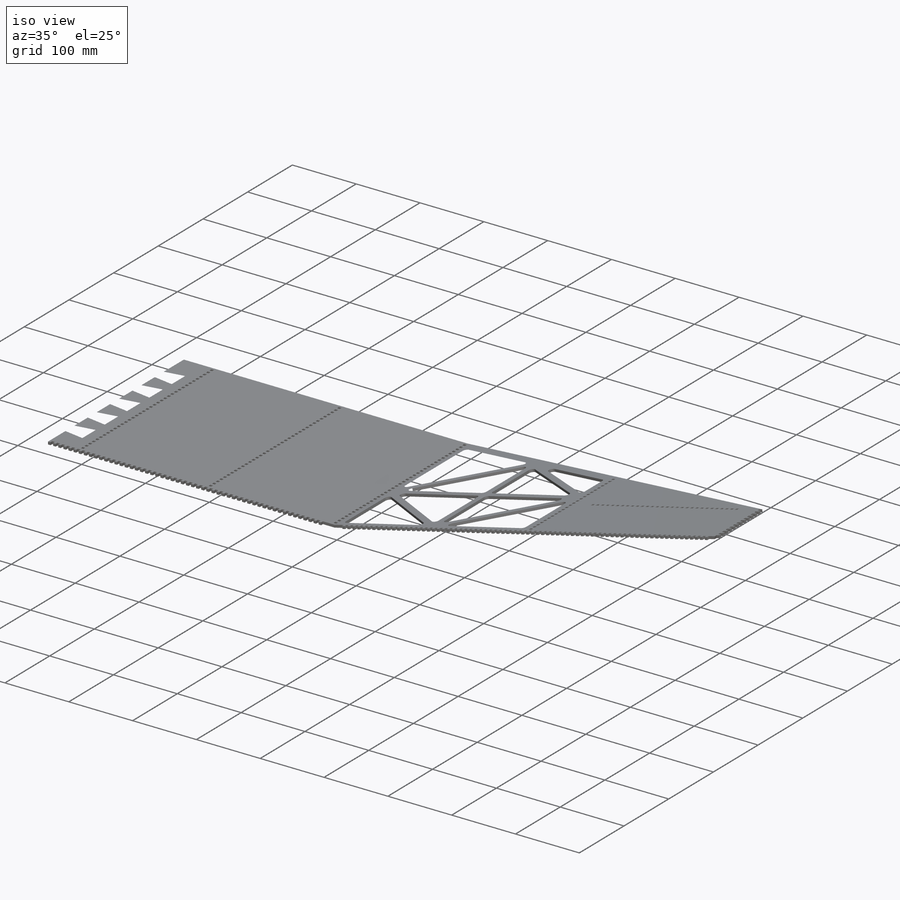
[diagram: iso view]
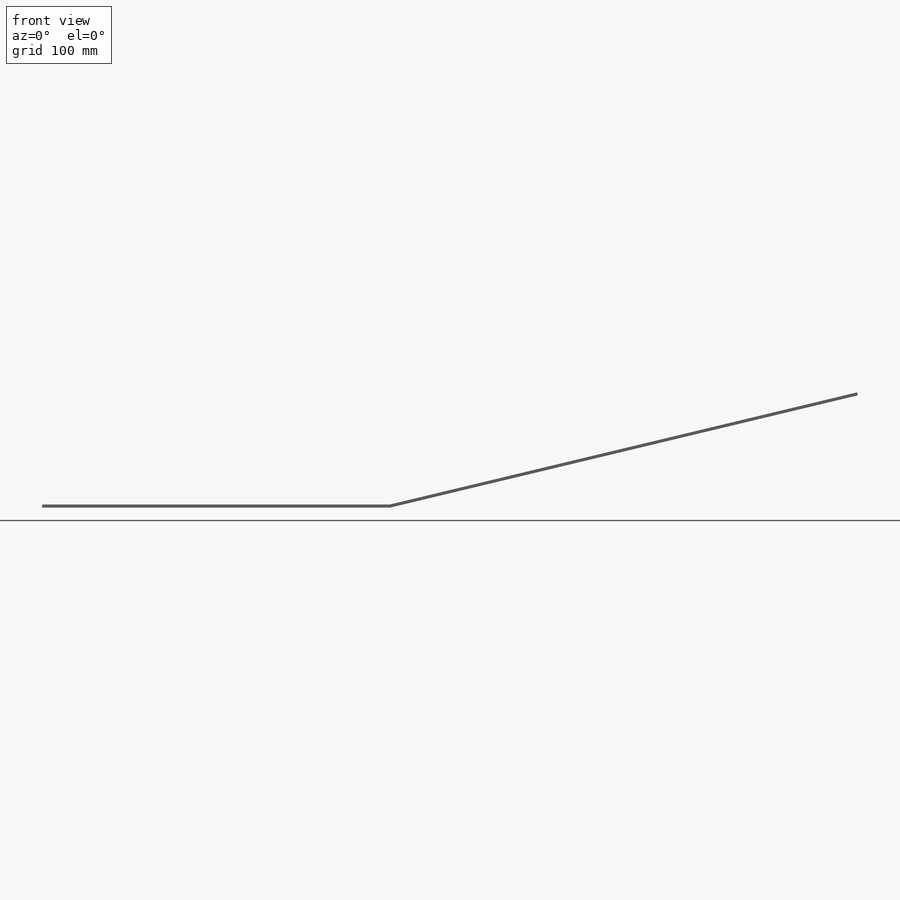
[diagram: front view]
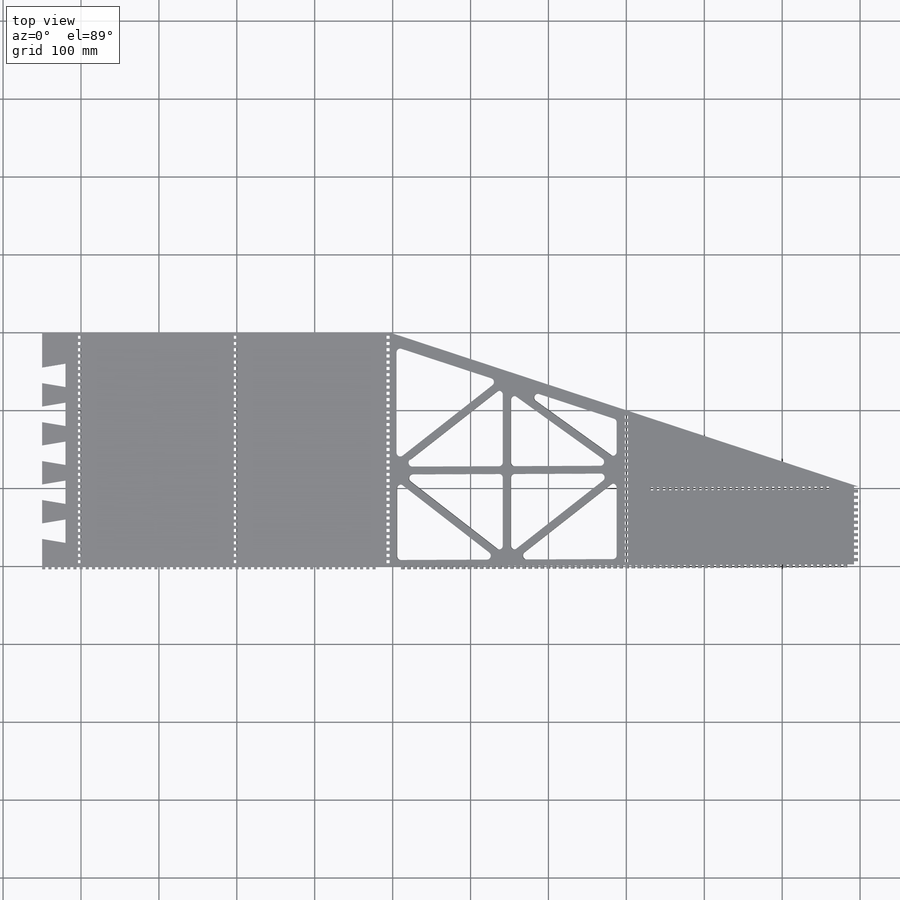
[diagram: top view]
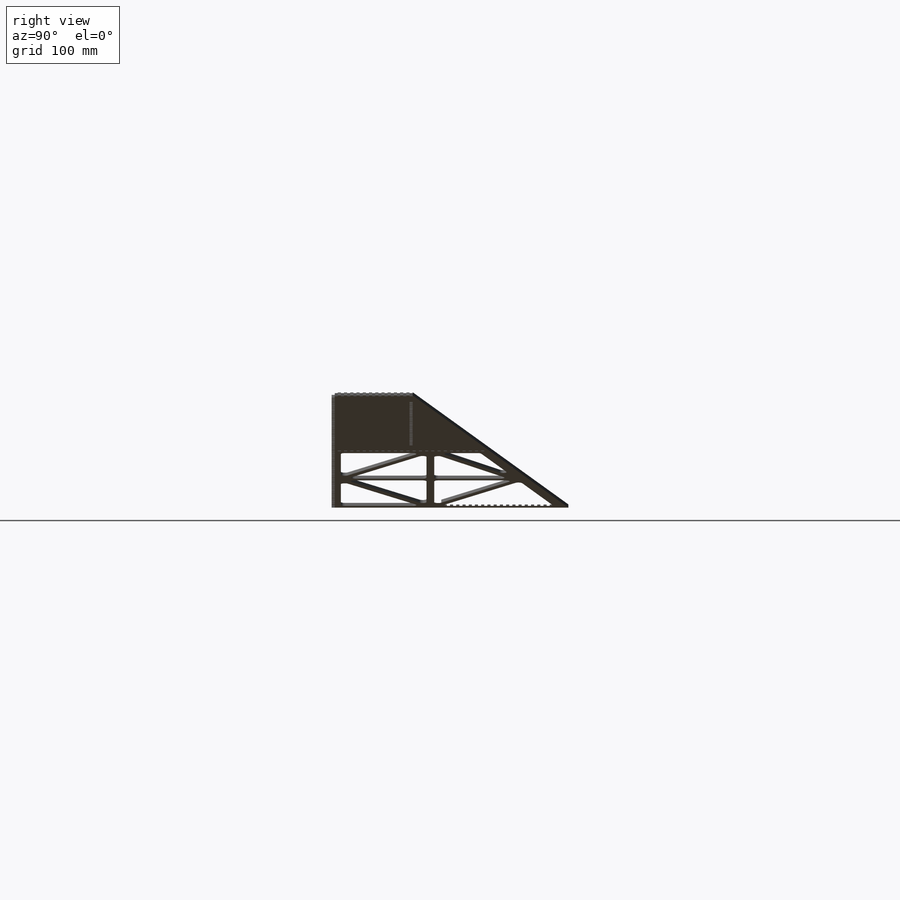
[diagram: right view]
SOLIDWORKS PART (.sldprt)
format: sldprt  version: not decoded by parser v0  size: 4,673,536 bytes
history: native  units: mm
features: sketch x12, cut_extrude x8, extrude x4, material x1 (+13 scaffold rows collapsed)
feature tree (38):
  scaffold x13  (default folders/planes/origin — collapsed)
  material  "Cedar"
  sketch  "Sketch1"  dims[c1.D1=1304.0mm c1.D2=150.0mm c1.D3=57.5mm c1.D4=600.0mm c1.D5=600.0mm c1.D6=6.0mm c1.D7=4.0mm c1.D8=4.0mm c1.D9=4.0mm c2.D1=1300.0mm]
  extrude  "Boss-Extrude1"  Depth=300mm
  sketch  "Sketch2"  dims[c1.D1=105.0mm c1.D2=100.0mm c2.D1=7.0mm c2.D3=101.0mm]
  cut_extrude  "Cut-Extrude1"  Depth=400mm
  sketch  "Sketch5"  dims[c1.D1=4.0mm c1.D2=4.0mm c1.D3=4.0mm c1.D5=196.0mm c2.D1=4.0mm c2.D2=4.0mm c2.D3=4.0mm c2.D5=196.0mm c2.D6=4.0mm c2.D7=4.0mm c2.D8=196.0mm c2.D9=4.0mm c2.D10=4.0mm c2.D11=4.0mm c2.D12=4.0mm c2.D13=4.0mm c2.D14=4.0mm c2.D4=37.0]
  cut_extrude  "Cut-Extrude2"  Depth=10mm
  sketch  "Sketch7"  dims[c1.D1=4.0mm c1.D2=4.0mm c1.D3=20.5mm c1.D5=7.28mm c1.D6=100.0mm c1.D7=4.0mm c1.D8=4.0mm c1.D9=4.5mm c1.D11=~19.069692mm c1.D12=91.5mm c1.D13=4.0mm c1.D14=4.0mm c2.D11=190.0mm c2.D12=4.0mm c2.D13=4.0mm c2.D14=10.0mm c2.D15=4.0mm c3.D13=14.0mm c3.D14=4.0mm c3.D15=4.0mm c4.D14=4.0mm c4.D15=4.0mm c4.D17=4.0mm c4.D18=4.0mm c5.D17=4.0mm c5.D13=4.0mm c5.D19=10.0mm c5.D12=4.0mm c5.D15=321.0mm c5.D16=4.0mm c6.D17=4.0mm c6.D18=4.0mm c6.D20=~9.454783mm c6.D5=7.0mm c7.D20=316.0mm c7.D21=4.0mm c7.D22=4.0mm c7.D23=4.0mm c7.D25=4.0mm c7.D26=4.0mm c7.D27=302.0mm c7.D28=4.0mm c7.D29=4.0mm c7.D30=4.0mm c7.D32=292.0mm c7.D33=~222.990155mm c8.D32=290.0mm c8.D33=4.0mm c8.D4=9.0 c8.D10=14.0 c8.D13=18.0 c8.D19=24.0 c8.D24=30.0 c8.D31=24.0 c8.D34=13.0]
  cut_extrude  "Cut-Extrude4"  Depth=300mm
  sketch  "Sketch9"  dims[c1.D1=91.5mm c1.D2=10.0mm c1.D3=4.0mm c1.D4=4.0mm c1.D6=~8.137145mm c2.D6=90.0deg c3.D6=~108.751019mm c4.D6=90.0deg c5.D6=11.0mm c5.D7=4.0mm c5.D8=4.0mm c5.D9=9.0mm c5.D10=5.75mm c5.D11=4.0mm c5.D12=4.0mm c5.D13=9.0mm c5.D14=7.0mm c5.D5=10.0 c6.D9=10.0]
  cut_extrude  "Cut-Extrude5"  Depth=10mm
  sketch  "Sketch10"  dims[c1.D1=4.0mm c1.D2=4.0mm c1.D3=8.0mm c1.D4=~108.751019mm c2.D3=8.0mm c2.D4=161.0]
  extrude  "Boss-Extrude2"  Depth=4mm
  sketch  "Sketch11"  dims[D1=4.0mm D2=4.0mm D3=10.0mm D4=72.0]
  extrude  "Boss-Extrude3"  Depth=4mm
  sketch  "Sketch12"  dims[c1.D1=4.0mm c1.D2=15.0mm c1.D3=4.0mm c1.D4=~0.933492mm c2.D2=15.0mm c2.D4=74.0]
  extrude  "Boss-Extrude4"  Depth=4mm
  sketch  "Sketch14"  dims[D1=100.0mm D2=30.0mm D3=4.0mm D4=4.0mm D5=30.0]
  cut_extrude  "Cut-Extrude6"  Depth=10mm
  sketch  "Sketch15"  dims[c1.D19=5.0mm c1.D20=5.0mm c1.D27=5.0mm c1.D37=5.0mm c1.D47=5.0mm c1.D1=8.0mm c1.D2=8.0mm c1.D3=8.0mm c1.D4=8.0mm c1.D5=8.0mm c1.D6=8.0mm c1.D7=8.0mm c1.D8=8.0mm c1.D9=8.0mm c1.D10=8.0mm c1.D11=6.0mm c1.D12=6.0mm c1.D13=6.0mm c1.D14=6.0mm c1.D15=6.0mm c1.D16=8.0mm c1.D17=8.0mm c1.D18=8.0mm c2.D19=8.0mm c2.D20=8.0mm c2.D21=8.0mm c2.D22=8.0mm c2.D23=8.0mm c2.D24=8.0mm c3.D21=8.0mm c3.D22=8.0mm c3.D23=8.0mm c3.D24=8.0mm c3.D25=8.0mm c3.D26=8.0mm c3.D28=8.0mm c3.D29=8.0mm c3.D30=8.0mm c3.D31=8.0mm c3.D32=8.0mm c3.D33=8.0mm c3.D34=8.0mm c3.D35=8.0mm c3.D36=8.0mm c3.D38=8.0mm c3.D39=8.0mm c3.D40=8.0mm c3.D41=8.0mm c3.D42=8.0mm c3.D43=8.0mm c3.D44=8.0mm c3.D45=8.0mm c3.D46=8.0mm c3.D48=8.0mm c3.D49=8.0mm c3.D50=8.0mm c3.D51=8.0mm]
  sketch  "Sketch17"  dims[D7=5.0mm D12=5.0mm D1=10.0mm D2=10.0mm D3=10.0mm D4=10.0mm D5=10.0mm D6=10.0mm D8=15.0mm D9=10.0mm D10=8.0mm D11=10.0mm]
  cut_extrude  "Cut-Extrude7"  Depth=10mm
  cut_extrude  "Cut-Extrude8"  Depth=10mm
  sketch  "Sketch18"  dims[c1.D1=190.0mm c1.D2=20.0mm c1.D3=20.0mm c2.D2=40.0mm c2.D1=5.0mm c2.D3=15.0mm c2.D4=15.0mm c2.D5=50.0mm c3.D2=15.0mm c3.D6=~60.833333mm c3.D7=~60.833333mm c3.D5=30.0mm c4.D7=15.0mm c4.D2=30.0mm c4.D3=25.0mm c4.D6=5.0]
  cut_extrude  "Cut-Extrude11"  Depth=300mm
decode coverage: 24 of 24 modeling features carry decoded parameters
note: ~ marks probable driven/reference dimensions
note: suppression state not decoded; provenance and decode notes live in map.json
